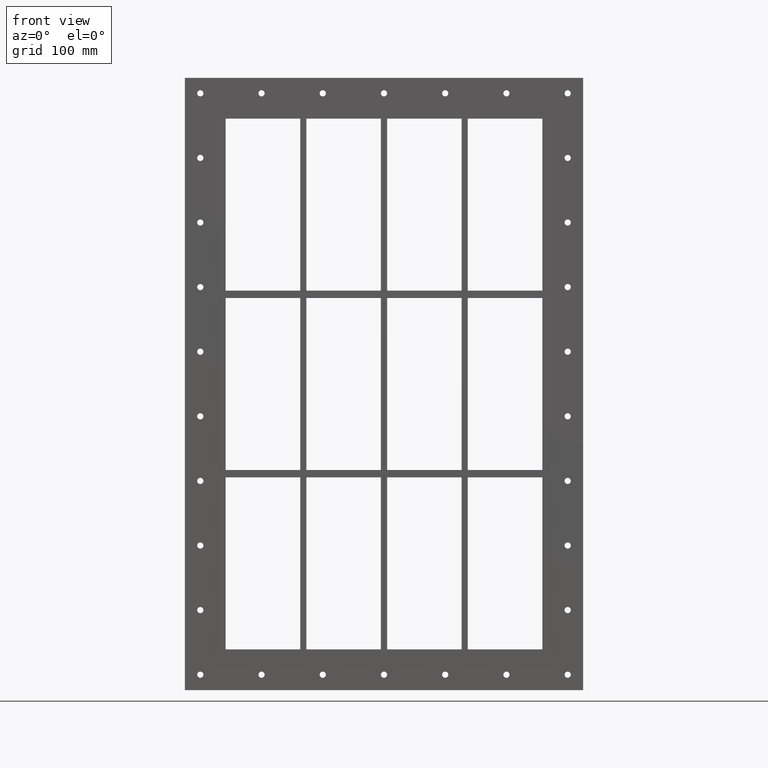
[diagram: clean part render]
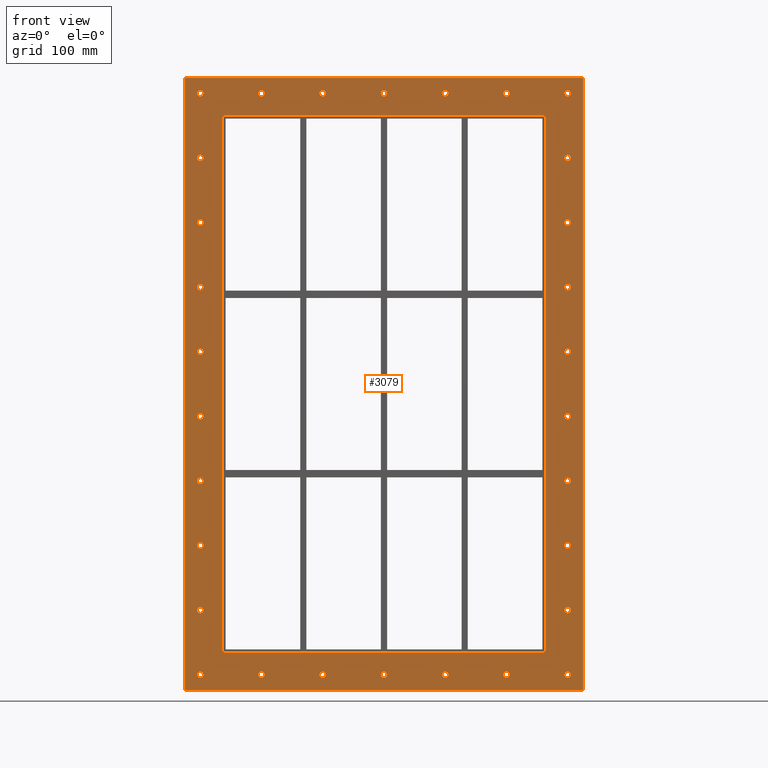
[diagram: same view with one face highlighted and labeled with its STEP entity id]
A machine part, front view. The second image highlights one B-rep face of the part: STEP entity #3079.
In plain terms, the highlighted planar face has unit normal (0, 1, 0).
Its self-contained STEP definition (entity closure, byte-faithful):
#84=CARTESIAN_POINT('',(-292.00000000000011,0.0,-469.99999999999994));
#85=VERTEX_POINT('',#84);
#86=CARTESIAN_POINT('',(-297.00000000000011,0.0,-469.99999999999994));
#87=DIRECTION('',(0.0,1.0,0.0));
#88=DIRECTION('',(1.0,0.0,0.0));
#89=AXIS2_PLACEMENT_3D('',#86,#87,#88);
#90=CIRCLE('',#89,5.0);
#91=EDGE_CURVE('',#85,#85,#90,.T.);
#112=CARTESIAN_POINT('',(301.99999999999994,0.0,-365.55999999999989));
#113=VERTEX_POINT('',#112);
#114=CARTESIAN_POINT('',(296.99999999999994,0.0,-365.55999999999989));
#115=DIRECTION('',(0.0,1.0,0.0));
#116=DIRECTION('',(1.0,0.0,0.0));
#117=AXIS2_PLACEMENT_3D('',#114,#115,#116);
#118=CIRCLE('',#117,5.0);
#119=EDGE_CURVE('',#113,#113,#118,.T.);
#140=CARTESIAN_POINT('',(-292.00000000000011,0.0,-365.55999999999989));
#141=VERTEX_POINT('',#140);
#142=CARTESIAN_POINT('',(-297.00000000000011,0.0,-365.55999999999989));
#143=DIRECTION('',(0.0,1.0,0.0));
#144=DIRECTION('',(1.0,0.0,0.0));
#145=AXIS2_PLACEMENT_3D('',#142,#143,#144);
#146=CIRCLE('',#145,5.0);
#147=EDGE_CURVE('',#141,#141,#146,.T.);
#168=CARTESIAN_POINT('',(301.99999999999994,0.0,-261.11999999999989));
#169=VERTEX_POINT('',#168);
#170=CARTESIAN_POINT('',(296.99999999999994,0.0,-261.11999999999989));
#171=DIRECTION('',(0.0,1.0,0.0));
#172=DIRECTION('',(1.0,0.0,0.0));
#173=AXIS2_PLACEMENT_3D('',#170,#171,#172);
#174=CIRCLE('',#173,5.0);
#175=EDGE_CURVE('',#169,#169,#174,.T.);
#196=CARTESIAN_POINT('',(-292.00000000000011,0.0,-261.11999999999989));
#197=VERTEX_POINT('',#196);
#198=CARTESIAN_POINT('',(-297.00000000000011,0.0,-261.11999999999989));
#199=DIRECTION('',(0.0,1.0,0.0));
#200=DIRECTION('',(1.0,0.0,0.0));
#201=AXIS2_PLACEMENT_3D('',#198,#199,#200);
#202=CIRCLE('',#201,5.0);
#203=EDGE_CURVE('',#197,#197,#202,.T.);
#224=CARTESIAN_POINT('',(301.99999999999994,0.0,-156.67999999999984));
#225=VERTEX_POINT('',#224);
#226=CARTESIAN_POINT('',(296.99999999999994,0.0,-156.67999999999984));
#227=DIRECTION('',(0.0,1.0,0.0));
#228=DIRECTION('',(1.0,0.0,0.0));
#229=AXIS2_PLACEMENT_3D('',#226,#227,#228);
#230=CIRCLE('',#229,5.0);
#231=EDGE_CURVE('',#225,#225,#230,.T.);
#252=CARTESIAN_POINT('',(-292.00000000000011,0.0,-156.67999999999984));
#253=VERTEX_POINT('',#252);
#254=CARTESIAN_POINT('',(-297.00000000000011,0.0,-156.67999999999984));
#255=DIRECTION('',(0.0,1.0,0.0));
#256=DIRECTION('',(1.0,0.0,0.0));
#257=AXIS2_PLACEMENT_3D('',#254,#255,#256);
#258=CIRCLE('',#257,5.0);
#259=EDGE_CURVE('',#253,#253,#258,.T.);
#280=CARTESIAN_POINT('',(301.99999999999994,0.0,-52.239999999999881));
#281=VERTEX_POINT('',#280);
#282=CARTESIAN_POINT('',(296.99999999999994,0.0,-52.239999999999881));
#283=DIRECTION('',(0.0,1.0,0.0));
#284=DIRECTION('',(1.0,0.0,0.0));
#285=AXIS2_PLACEMENT_3D('',#282,#283,#284);
#286=CIRCLE('',#285,5.0);
#287=EDGE_CURVE('',#281,#281,#286,.T.);
#308=CARTESIAN_POINT('',(-292.00000000000011,0.0,-52.239999999999881));
#309=VERTEX_POINT('',#308);
#310=CARTESIAN_POINT('',(-297.00000000000011,0.0,-52.239999999999881));
#311=DIRECTION('',(0.0,1.0,0.0));
#312=DIRECTION('',(1.0,0.0,0.0));
#313=AXIS2_PLACEMENT_3D('',#310,#311,#312);
#314=CIRCLE('',#313,5.0);
#315=EDGE_CURVE('',#309,#309,#314,.T.);
#336=CARTESIAN_POINT('',(301.99999999999994,0.0,52.200000000000145));
#337=VERTEX_POINT('',#336);
#338=CARTESIAN_POINT('',(296.99999999999994,0.0,52.200000000000145));
#339=DIRECTION('',(0.0,1.0,0.0));
#340=DIRECTION('',(1.0,0.0,0.0));
#341=AXIS2_PLACEMENT_3D('',#338,#339,#340);
#342=CIRCLE('',#341,5.0);
#343=EDGE_CURVE('',#337,#337,#342,.T.);
#364=CARTESIAN_POINT('',(-292.00000000000011,0.0,52.200000000000145));
#365=VERTEX_POINT('',#364);
#366=CARTESIAN_POINT('',(-297.00000000000011,0.0,52.200000000000145));
#367=DIRECTION('',(0.0,1.0,0.0));
#368=DIRECTION('',(1.0,0.0,0.0));
#369=AXIS2_PLACEMENT_3D('',#366,#367,#368);
#370=CIRCLE('',#369,5.0);
#371=EDGE_CURVE('',#365,#365,#370,.T.);
#392=CARTESIAN_POINT('',(301.99999999999994,0.0,156.64000000000019));
#393=VERTEX_POINT('',#392);
#394=CARTESIAN_POINT('',(296.99999999999994,0.0,156.64000000000019));
#395=DIRECTION('',(0.0,1.0,0.0));
#396=DIRECTION('',(1.0,0.0,0.0));
#397=AXIS2_PLACEMENT_3D('',#394,#395,#396);
#398=CIRCLE('',#397,5.0);
#399=EDGE_CURVE('',#393,#393,#398,.T.);
#420=CARTESIAN_POINT('',(-292.00000000000011,0.0,156.64000000000019));
#421=VERTEX_POINT('',#420);
#422=CARTESIAN_POINT('',(-297.00000000000011,0.0,156.64000000000019));
#423=DIRECTION('',(0.0,1.0,0.0));
#424=DIRECTION('',(1.0,0.0,0.0));
#425=AXIS2_PLACEMENT_3D('',#422,#423,#424);
#426=CIRCLE('',#425,5.0);
#427=EDGE_CURVE('',#421,#421,#426,.T.);
#448=CARTESIAN_POINT('',(301.99999999999994,0.0,261.0800000000001));
#449=VERTEX_POINT('',#448);
#450=CARTESIAN_POINT('',(296.99999999999994,0.0,261.0800000000001));
#451=DIRECTION('',(0.0,1.0,0.0));
#452=DIRECTION('',(1.0,0.0,0.0));
#453=AXIS2_PLACEMENT_3D('',#450,#451,#452);
#454=CIRCLE('',#453,5.0);
#455=EDGE_CURVE('',#449,#449,#454,.T.);
#476=CARTESIAN_POINT('',(-292.00000000000011,0.0,261.0800000000001));
#477=VERTEX_POINT('',#476);
#478=CARTESIAN_POINT('',(-297.00000000000011,0.0,261.0800000000001));
#479=DIRECTION('',(0.0,1.0,0.0));
#480=DIRECTION('',(1.0,0.0,0.0));
#481=AXIS2_PLACEMENT_3D('',#478,#479,#480);
#482=CIRCLE('',#481,5.0);
#483=EDGE_CURVE('',#477,#477,#482,.T.);
#504=CARTESIAN_POINT('',(301.99999999999994,0.0,365.52000000000015));
#505=VERTEX_POINT('',#504);
#506=CARTESIAN_POINT('',(296.99999999999994,0.0,365.52000000000015));
#507=DIRECTION('',(0.0,1.0,0.0));
#508=DIRECTION('',(1.0,0.0,0.0));
#509=AXIS2_PLACEMENT_3D('',#506,#507,#508);
#510=CIRCLE('',#509,5.0);
#511=EDGE_CURVE('',#505,#505,#510,.T.);
#532=CARTESIAN_POINT('',(-292.00000000000011,0.0,365.52000000000015));
#533=VERTEX_POINT('',#532);
#534=CARTESIAN_POINT('',(-297.00000000000011,0.0,365.52000000000015));
#535=DIRECTION('',(0.0,1.0,0.0));
#536=DIRECTION('',(1.0,0.0,0.0));
#537=AXIS2_PLACEMENT_3D('',#534,#535,#536);
#538=CIRCLE('',#537,5.0);
#539=EDGE_CURVE('',#533,#533,#538,.T.);
#560=CARTESIAN_POINT('',(-193.00000000000011,0.0,469.96000000000015));
#561=VERTEX_POINT('',#560);
#562=CARTESIAN_POINT('',(-198.00000000000011,0.0,469.96000000000015));
#563=DIRECTION('',(0.0,1.0,0.0));
#564=DIRECTION('',(1.0,0.0,0.0));
#565=AXIS2_PLACEMENT_3D('',#562,#563,#564);
#566=CIRCLE('',#565,5.0);
#567=EDGE_CURVE('',#561,#561,#566,.T.);
#588=CARTESIAN_POINT('',(-193.00000000000011,0.0,-469.99999999999994));
#589=VERTEX_POINT('',#588);
#590=CARTESIAN_POINT('',(-198.00000000000011,0.0,-469.99999999999994));
#591=DIRECTION('',(0.0,1.0,0.0));
#592=DIRECTION('',(1.0,0.0,0.0));
#593=AXIS2_PLACEMENT_3D('',#590,#591,#592);
#594=CIRCLE('',#593,5.0);
#595=EDGE_CURVE('',#589,#589,#594,.T.);
#616=CARTESIAN_POINT('',(-94.000000000000114,0.0,469.96000000000015));
#617=VERTEX_POINT('',#616);
#618=CARTESIAN_POINT('',(-99.000000000000114,0.0,469.96000000000015));
#619=DIRECTION('',(0.0,1.0,0.0));
#620=DIRECTION('',(1.0,0.0,0.0));
#621=AXIS2_PLACEMENT_3D('',#618,#619,#620);
#622=CIRCLE('',#621,5.0);
#623=EDGE_CURVE('',#617,#617,#622,.T.);
#644=CARTESIAN_POINT('',(-94.000000000000114,0.0,-469.99999999999994));
#645=VERTEX_POINT('',#644);
#646=CARTESIAN_POINT('',(-99.000000000000114,0.0,-469.99999999999994));
#647=DIRECTION('',(0.0,1.0,0.0));
#648=DIRECTION('',(1.0,0.0,0.0));
#649=AXIS2_PLACEMENT_3D('',#646,#647,#648);
#650=CIRCLE('',#649,5.0);
#651=EDGE_CURVE('',#645,#645,#650,.T.);
#672=CARTESIAN_POINT('',(4.999999999999876,0.0,469.96000000000015));
#673=VERTEX_POINT('',#672);
#674=CARTESIAN_POINT('',(-1.243450E-013,0.0,469.96000000000015));
#675=DIRECTION('',(0.0,1.0,0.0));
#676=DIRECTION('',(1.0,0.0,0.0));
#677=AXIS2_PLACEMENT_3D('',#674,#675,#676);
#678=CIRCLE('',#677,5.0);
#679=EDGE_CURVE('',#673,#673,#678,.T.);
#700=CARTESIAN_POINT('',(4.999999999999876,0.0,-469.99999999999994));
#701=VERTEX_POINT('',#700);
#702=CARTESIAN_POINT('',(-1.243450E-013,0.0,-469.99999999999994));
#703=DIRECTION('',(0.0,1.0,0.0));
#704=DIRECTION('',(1.0,0.0,0.0));
#705=AXIS2_PLACEMENT_3D('',#702,#703,#704);
#706=CIRCLE('',#705,5.0);
#707=EDGE_CURVE('',#701,#701,#706,.T.);
#728=CARTESIAN_POINT('',(103.9999999999999,0.0,469.96000000000015));
#729=VERTEX_POINT('',#728);
#730=CARTESIAN_POINT('',(98.999999999999901,0.0,469.96000000000015));
#731=DIRECTION('',(0.0,1.0,0.0));
#732=DIRECTION('',(1.0,0.0,0.0));
#733=AXIS2_PLACEMENT_3D('',#730,#731,#732);
#734=CIRCLE('',#733,5.0);
#735=EDGE_CURVE('',#729,#729,#734,.T.);
#756=CARTESIAN_POINT('',(103.9999999999999,0.0,-469.99999999999994));
#757=VERTEX_POINT('',#756);
#758=CARTESIAN_POINT('',(98.999999999999901,0.0,-469.99999999999994));
#759=DIRECTION('',(0.0,1.0,0.0));
#760=DIRECTION('',(1.0,0.0,0.0));
#761=AXIS2_PLACEMENT_3D('',#758,#759,#760);
#762=CIRCLE('',#761,5.0);
#763=EDGE_CURVE('',#757,#757,#762,.T.);
#784=CARTESIAN_POINT('',(202.99999999999989,0.0,469.96000000000015));
#785=VERTEX_POINT('',#784);
#786=CARTESIAN_POINT('',(197.99999999999989,0.0,469.96000000000015));
#787=DIRECTION('',(0.0,1.0,0.0));
#788=DIRECTION('',(1.0,0.0,0.0));
#789=AXIS2_PLACEMENT_3D('',#786,#787,#788);
#790=CIRCLE('',#789,5.0);
#791=EDGE_CURVE('',#785,#785,#790,.T.);
#812=CARTESIAN_POINT('',(202.99999999999989,0.0,-469.99999999999994));
#813=VERTEX_POINT('',#812);
#814=CARTESIAN_POINT('',(197.99999999999989,0.0,-469.99999999999994));
#815=DIRECTION('',(0.0,1.0,0.0));
#816=DIRECTION('',(1.0,0.0,0.0));
#817=AXIS2_PLACEMENT_3D('',#814,#815,#816);
#818=CIRCLE('',#817,5.0);
#819=EDGE_CURVE('',#813,#813,#818,.T.);
#840=CARTESIAN_POINT('',(301.99999999999994,0.0,-469.99999999999994));
#841=VERTEX_POINT('',#840);
#842=CARTESIAN_POINT('',(296.99999999999994,0.0,-469.99999999999994));
#843=DIRECTION('',(0.0,1.0,0.0));
#844=DIRECTION('',(1.0,0.0,0.0));
#845=AXIS2_PLACEMENT_3D('',#842,#843,#844);
#846=CIRCLE('',#845,5.0);
#847=EDGE_CURVE('',#841,#841,#846,.T.);
#868=CARTESIAN_POINT('',(-292.00000000000011,0.0,469.96000000000015));
#869=VERTEX_POINT('',#868);
#870=CARTESIAN_POINT('',(-297.00000000000011,0.0,469.96000000000015));
#871=DIRECTION('',(0.0,1.0,0.0));
#872=DIRECTION('',(1.0,0.0,0.0));
#873=AXIS2_PLACEMENT_3D('',#870,#871,#872);
#874=CIRCLE('',#873,5.0);
#875=EDGE_CURVE('',#869,#869,#874,.T.);
#896=CARTESIAN_POINT('',(301.99999999999994,0.0,469.96000000000015));
#897=VERTEX_POINT('',#896);
#898=CARTESIAN_POINT('',(296.99999999999994,0.0,469.96000000000015));
#899=DIRECTION('',(0.0,1.0,0.0));
#900=DIRECTION('',(1.0,0.0,0.0));
#901=AXIS2_PLACEMENT_3D('',#898,#899,#900);
#902=CIRCLE('',#901,5.0);
#903=EDGE_CURVE('',#897,#897,#902,.T.);
#2880=CARTESIAN_POINT('',(0.0,0.0,8.414322E-014));
#2881=DIRECTION('',(0.0,1.0,0.0));
#2882=DIRECTION('',(0.0,0.0,1.0));
#2883=AXIS2_PLACEMENT_3D('',#2880,#2881,#2882);
#2884=PLANE('',#2883);
#2885=CARTESIAN_POINT('',(-322.00000000000011,0.0,495.00000000000006));
#2886=VERTEX_POINT('',#2885);
#2887=CARTESIAN_POINT('',(322.00000000000011,0.0,495.00000000000006));
#2888=VERTEX_POINT('',#2887);
#2889=CARTESIAN_POINT('',(-322.00000000000011,0.0,495.00000000000006));
#2890=DIRECTION('',(1.0,0.0,0.0));
#2891=VECTOR('',#2890,644.00000000000023);
#2892=LINE('',#2889,#2891);
#2893=EDGE_CURVE('',#2886,#2888,#2892,.T.);
#2894=ORIENTED_EDGE('',*,*,#2893,.F.);
#2895=CARTESIAN_POINT('',(-322.00000000000011,0.0,-494.99999999999994));
#2896=VERTEX_POINT('',#2895);
#2897=CARTESIAN_POINT('',(-322.00000000000011,0.0,-494.99999999999994));
#2898=DIRECTION('',(0.0,0.0,1.0));
#2899=VECTOR('',#2898,990.0);
#2900=LINE('',#2897,#2899);
#2901=EDGE_CURVE('',#2896,#2886,#2900,.T.);
#2902=ORIENTED_EDGE('',*,*,#2901,.F.);
#2903=CARTESIAN_POINT('',(322.00000000000011,0.0,-494.99999999999994));
#2904=VERTEX_POINT('',#2903);
#2905=CARTESIAN_POINT('',(322.00000000000011,0.0,-494.99999999999994));
#2906=DIRECTION('',(-1.0,0.0,0.0));
#2907=VECTOR('',#2906,644.00000000000023);
#2908=LINE('',#2905,#2907);
#2909=EDGE_CURVE('',#2904,#2896,#2908,.T.);
#2910=ORIENTED_EDGE('',*,*,#2909,.F.);
#2911=CARTESIAN_POINT('',(322.00000000000011,0.0,495.00000000000006));
#2912=DIRECTION('',(0.0,0.0,-1.0));
#2913=VECTOR('',#2912,990.0);
#2914=LINE('',#2911,#2913);
#2915=EDGE_CURVE('',#2888,#2904,#2914,.T.);
#2916=ORIENTED_EDGE('',*,*,#2915,.F.);
#2917=EDGE_LOOP('',(#2894,#2902,#2910,#2916));
#2918=FACE_OUTER_BOUND('',#2917,.T.);
#2919=ORIENTED_EDGE('',*,*,#91,.T.);
#2920=EDGE_LOOP('',(#2919));
#2921=FACE_BOUND('',#2920,.T.);
#2922=ORIENTED_EDGE('',*,*,#119,.T.);
#2923=EDGE_LOOP('',(#2922));
#2924=FACE_BOUND('',#2923,.T.);
#2925=ORIENTED_EDGE('',*,*,#147,.T.);
#2926=EDGE_LOOP('',(#2925));
#2927=FACE_BOUND('',#2926,.T.);
#2928=ORIENTED_EDGE('',*,*,#175,.T.);
#2929=EDGE_LOOP('',(#2928));
#2930=FACE_BOUND('',#2929,.T.);
#2931=ORIENTED_EDGE('',*,*,#203,.T.);
#2932=EDGE_LOOP('',(#2931));
#2933=FACE_BOUND('',#2932,.T.);
#2934=ORIENTED_EDGE('',*,*,#231,.T.);
#2935=EDGE_LOOP('',(#2934));
#2936=FACE_BOUND('',#2935,.T.);
#2937=ORIENTED_EDGE('',*,*,#259,.T.);
#2938=EDGE_LOOP('',(#2937));
#2939=FACE_BOUND('',#2938,.T.);
#2940=ORIENTED_EDGE('',*,*,#287,.T.);
#2941=EDGE_LOOP('',(#2940));
#2942=FACE_BOUND('',#2941,.T.);
#2943=ORIENTED_EDGE('',*,*,#315,.T.);
#2944=EDGE_LOOP('',(#2943));
#2945=FACE_BOUND('',#2944,.T.);
#2946=ORIENTED_EDGE('',*,*,#343,.T.);
#2947=EDGE_LOOP('',(#2946));
#2948=FACE_BOUND('',#2947,.T.);
#2949=ORIENTED_EDGE('',*,*,#371,.T.);
#2950=EDGE_LOOP('',(#2949));
#2951=FACE_BOUND('',#2950,.T.);
#2952=ORIENTED_EDGE('',*,*,#399,.T.);
#2953=EDGE_LOOP('',(#2952));
#2954=FACE_BOUND('',#2953,.T.);
#2955=ORIENTED_EDGE('',*,*,#427,.T.);
#2956=EDGE_LOOP('',(#2955));
#2957=FACE_BOUND('',#2956,.T.);
#2958=ORIENTED_EDGE('',*,*,#455,.T.);
#2959=EDGE_LOOP('',(#2958));
#2960=FACE_BOUND('',#2959,.T.);
#2961=ORIENTED_EDGE('',*,*,#483,.T.);
#2962=EDGE_LOOP('',(#2961));
#2963=FACE_BOUND('',#2962,.T.);
#2964=ORIENTED_EDGE('',*,*,#511,.T.);
#2965=EDGE_LOOP('',(#2964));
#2966=FACE_BOUND('',#2965,.T.);
#2967=ORIENTED_EDGE('',*,*,#539,.T.);
#2968=EDGE_LOOP('',(#2967));
#2969=FACE_BOUND('',#2968,.T.);
#2970=ORIENTED_EDGE('',*,*,#567,.T.);
#2971=EDGE_LOOP('',(#2970));
#2972=FACE_BOUND('',#2971,.T.);
#2973=ORIENTED_EDGE('',*,*,#595,.T.);
#2974=EDGE_LOOP('',(#2973));
#2975=FACE_BOUND('',#2974,.T.);
#2976=ORIENTED_EDGE('',*,*,#623,.T.);
#2977=EDGE_LOOP('',(#2976));
#2978=FACE_BOUND('',#2977,.T.);
#2979=ORIENTED_EDGE('',*,*,#651,.T.);
#2980=EDGE_LOOP('',(#2979));
#2981=FACE_BOUND('',#2980,.T.);
#2982=ORIENTED_EDGE('',*,*,#679,.T.);
#2983=EDGE_LOOP('',(#2982));
#2984=FACE_BOUND('',#2983,.T.);
#2985=ORIENTED_EDGE('',*,*,#707,.T.);
#2986=EDGE_LOOP('',(#2985));
#2987=FACE_BOUND('',#2986,.T.);
#2988=ORIENTED_EDGE('',*,*,#735,.T.);
#2989=EDGE_LOOP('',(#2988));
#2990=FACE_BOUND('',#2989,.T.);
#2991=ORIENTED_EDGE('',*,*,#763,.T.);
#2992=EDGE_LOOP('',(#2991));
#2993=FACE_BOUND('',#2992,.T.);
#2994=ORIENTED_EDGE('',*,*,#791,.T.);
#2995=EDGE_LOOP('',(#2994));
#2996=FACE_BOUND('',#2995,.T.);
#2997=ORIENTED_EDGE('',*,*,#819,.T.);
#2998=EDGE_LOOP('',(#2997));
#2999=FACE_BOUND('',#2998,.T.);
#3000=ORIENTED_EDGE('',*,*,#847,.T.);
#3001=EDGE_LOOP('',(#3000));
#3002=FACE_BOUND('',#3001,.T.);
#3003=ORIENTED_EDGE('',*,*,#875,.T.);
#3004=EDGE_LOOP('',(#3003));
#3005=FACE_BOUND('',#3004,.T.);
#3006=ORIENTED_EDGE('',*,*,#903,.T.);
#3007=EDGE_LOOP('',(#3006));
#3008=FACE_BOUND('',#3007,.T.);
#3009=CARTESIAN_POINT('',(-262.00000000000006,0.0,-429.00000000000023));
#3010=VERTEX_POINT('',#3009);
#3011=CARTESIAN_POINT('',(-256.00000000000006,0.0,-435.00000000000011));
#3012=VERTEX_POINT('',#3011);
#3013=CARTESIAN_POINT('',(-256.00000000000006,0.0,-429.00000000000023));
#3014=DIRECTION('',(0.0,-1.0,0.0));
#3015=DIRECTION('',(-0.707106781186552,0.0,-0.707106781186543));
#3016=AXIS2_PLACEMENT_3D('',#3013,#3014,#3015);
#3017=CIRCLE('',#3016,6.000000000000001);
#3018=EDGE_CURVE('',#3010,#3012,#3017,.T.);
#3019=ORIENTED_EDGE('',*,*,#3018,.F.);
#3020=CARTESIAN_POINT('',(-262.00000000000006,0.0,428.99999999999989));
#3021=VERTEX_POINT('',#3020);
#3022=CARTESIAN_POINT('',(-262.00000000000006,0.0,428.99999999999989));
#3023=DIRECTION('',(0.0,0.0,-1.0));
#3024=VECTOR('',#3023,858.00000000000011);
#3025=LINE('',#3022,#3024);
#3026=EDGE_CURVE('',#3021,#3010,#3025,.T.);
#3027=ORIENTED_EDGE('',*,*,#3026,.F.);
#3028=CARTESIAN_POINT('',(-256.00000000000011,0.0,435.0));
#3029=VERTEX_POINT('',#3028);
#3030=CARTESIAN_POINT('',(-256.00000000000011,0.0,428.99999999999989));
#3031=DIRECTION('',(0.0,-1.0,0.0));
#3032=DIRECTION('',(-0.707106781186539,0.0,0.707106781186556));
#3033=AXIS2_PLACEMENT_3D('',#3030,#3031,#3032);
#3034=CIRCLE('',#3033,6.000000000000001);
#3035=EDGE_CURVE('',#3029,#3021,#3034,.T.);
#3036=ORIENTED_EDGE('',*,*,#3035,.F.);
#3037=CARTESIAN_POINT('',(256.0,0.0,435.0));
#3038=VERTEX_POINT('',#3037);
#3039=CARTESIAN_POINT('',(256.0,0.0,435.0));
#3040=DIRECTION('',(-1.0,0.0,0.0));
#3041=VECTOR('',#3040,512.0);
#3042=LINE('',#3039,#3041);
#3043=EDGE_CURVE('',#3038,#3029,#3042,.T.);
#3044=ORIENTED_EDGE('',*,*,#3043,.F.);
#3045=CARTESIAN_POINT('',(262.0,0.0,429.0));
#3046=VERTEX_POINT('',#3045);
#3047=CARTESIAN_POINT('',(256.0,0.0,429.0));
#3048=DIRECTION('',(0.0,-1.0,0.0));
#3049=DIRECTION('',(0.707106781186543,0.0,0.707106781186552));
#3050=AXIS2_PLACEMENT_3D('',#3047,#3048,#3049);
#3051=CIRCLE('',#3050,6.0);
#3052=EDGE_CURVE('',#3046,#3038,#3051,.T.);
#3053=ORIENTED_EDGE('',*,*,#3052,.F.);
#3054=CARTESIAN_POINT('',(262.0,0.0,-429.00000000000006));
#3055=VERTEX_POINT('',#3054);
#3056=CARTESIAN_POINT('',(262.0,0.0,-429.0));
#3057=DIRECTION('',(0.0,0.0,1.0));
#3058=VECTOR('',#3057,858.0);
#3059=LINE('',#3056,#3058);
#3060=EDGE_CURVE('',#3055,#3046,#3059,.T.);
#3061=ORIENTED_EDGE('',*,*,#3060,.F.);
#3062=CARTESIAN_POINT('',(256.0,0.0,-435.00000000000011));
#3063=VERTEX_POINT('',#3062);
#3064=CARTESIAN_POINT('',(256.0,0.0,-429.00000000000006));
#3065=DIRECTION('',(0.0,-1.0,0.0));
#3066=DIRECTION('',(0.707106781186543,0.0,-0.707106781186552));
#3067=AXIS2_PLACEMENT_3D('',#3064,#3065,#3066);
#3068=CIRCLE('',#3067,6.0);
#3069=EDGE_CURVE('',#3063,#3055,#3068,.T.);
#3070=ORIENTED_EDGE('',*,*,#3069,.F.);
#3071=CARTESIAN_POINT('',(-256.0,0.0,-435.00000000000011));
#3072=DIRECTION('',(1.0,0.0,0.0));
#3073=VECTOR('',#3072,512.0);
#3074=LINE('',#3071,#3073);
#3075=EDGE_CURVE('',#3012,#3063,#3074,.T.);
#3076=ORIENTED_EDGE('',*,*,#3075,.F.);
#3077=EDGE_LOOP('',(#3019,#3027,#3036,#3044,#3053,#3061,#3070,#3076));
#3078=FACE_BOUND('',#3077,.T.);
#3079=ADVANCED_FACE('',(#2918,#2921,#2924,#2927,#2930,#2933,#2936,#2939,#2942,#2945,#2948,#2951,#2954,#2957,#2960,#2963,#2966,#2969,#2972,#2975,#2978,#2981,#2984,#2987,#2990,#2993,#2996,#2999,#3002,#3005,#3008,#3078),#2884,.F.);